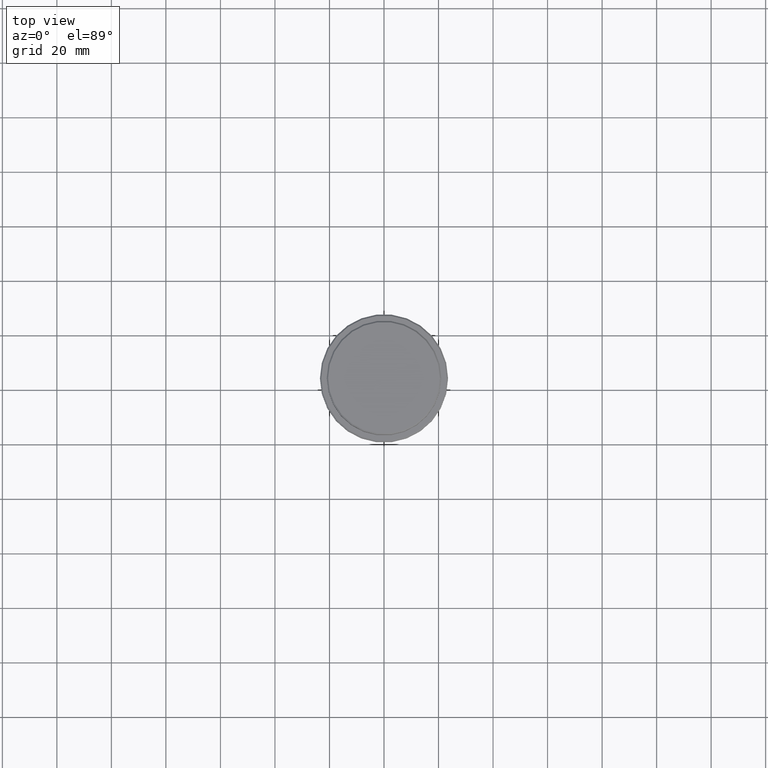
[diagram: clean part render]
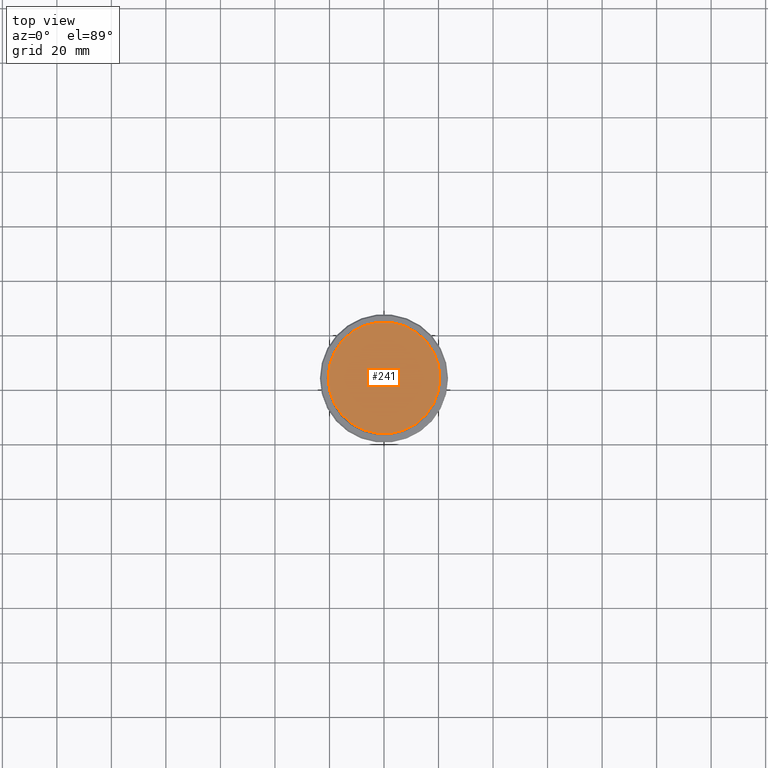
[diagram: same view with one face highlighted and labeled with its STEP entity id]
A machine part, top view. The second image highlights one B-rep face of the part: STEP entity #241.
In plain terms, the highlighted planar face has unit normal (0, -0, 1).
Its self-contained STEP definition (entity closure, byte-faithful):
#46 = PLANE ( 'NONE',  #1075 ) ;
#179 = DIRECTION ( 'NONE',  ( -0.000000000000000000, -0.000000000000000000, 1.000000000000000000 ) ) ;
#241 = ADVANCED_FACE ( 'NONE', ( #1030 ), #46, .T. ) ;
#311 = DIRECTION ( 'NONE',  ( -0.000000000000000000, -0.000000000000000000, 1.000000000000000000 ) ) ;
#405 = DIRECTION ( 'NONE',  ( 1.000000000000000000, 0.000000000000000000, 0.000000000000000000 ) ) ;
#444 = VERTEX_POINT ( 'NONE', #952 ) ;
#491 = EDGE_LOOP ( 'NONE', ( #859, #676 ) ) ;
#502 = DIRECTION ( 'NONE',  ( 1.000000000000000000, 0.000000000000000000, 0.000000000000000000 ) ) ;
#522 = CARTESIAN_POINT ( 'NONE',  ( 0.000000000000000000, 0.000000000000000000, 0.000000000000000000 ) ) ;
#589 = EDGE_CURVE ( 'NONE', #1135, #444, #931, .T. ) ;
#592 = DIRECTION ( 'NONE',  ( 1.000000000000000000, 0.000000000000000000, 0.000000000000000000 ) ) ;
#595 = CARTESIAN_POINT ( 'NONE',  ( -20.50000000000007461, 0.000000000000000000, 0.000000000000000000 ) ) ;
#612 = CARTESIAN_POINT ( 'NONE',  ( 0.000000000000000000, 0.000000000000000000, 0.000000000000000000 ) ) ;
#629 = CIRCLE ( 'NONE', #1362, 20.50000000000007461 ) ;
#676 = ORIENTED_EDGE ( 'NONE', *, *, #1349, .T. ) ;
#859 = ORIENTED_EDGE ( 'NONE', *, *, #589, .T. ) ;
#931 = CIRCLE ( 'NONE', #1230, 20.50000000000007461 ) ;
#934 = DIRECTION ( 'NONE',  ( 0.000000000000000000, -0.000000000000000000, 1.000000000000000000 ) ) ;
#952 = CARTESIAN_POINT ( 'NONE',  ( 20.50000000000007461, 2.541142108230762213E-15, 0.000000000000000000 ) ) ;
#1030 = FACE_OUTER_BOUND ( 'NONE', #491, .T. ) ;
#1053 = CARTESIAN_POINT ( 'NONE',  ( 0.000000000000000000, 0.000000000000000000, 0.000000000000000000 ) ) ;
#1075 = AXIS2_PLACEMENT_3D ( 'NONE', #1053, #934, #592 ) ;
#1135 = VERTEX_POINT ( 'NONE', #595 ) ;
#1230 = AXIS2_PLACEMENT_3D ( 'NONE', #522, #311, #405 ) ;
#1349 = EDGE_CURVE ( 'NONE', #444, #1135, #629, .T. ) ;
#1362 = AXIS2_PLACEMENT_3D ( 'NONE', #612, #179, #502 ) ;